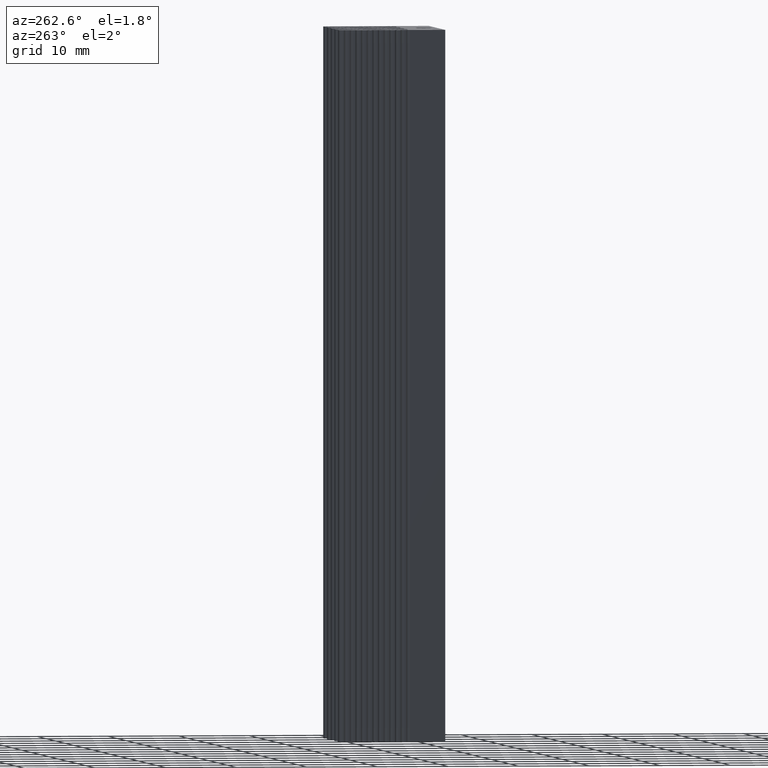
[diagram: clean part render]
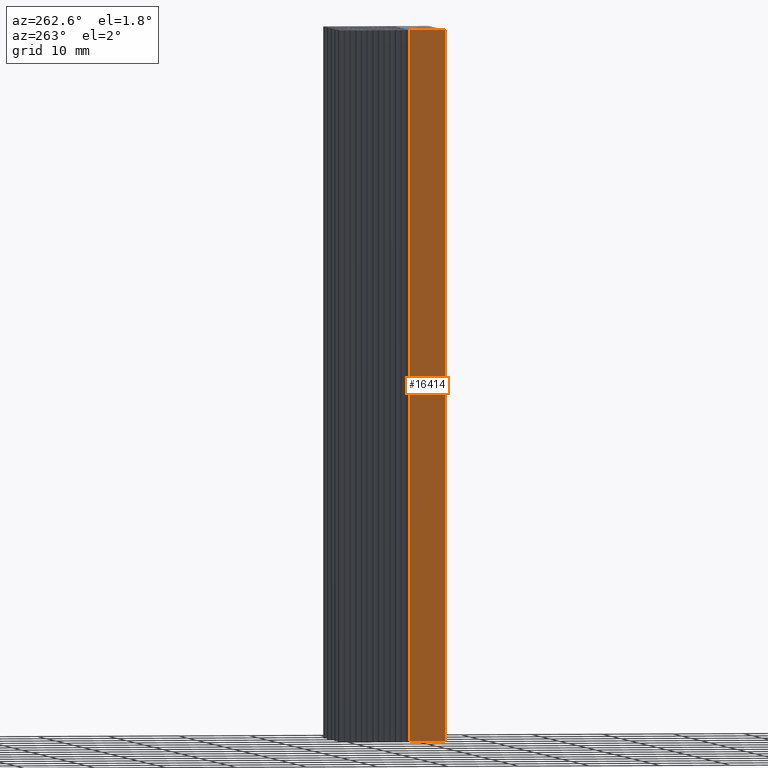
[diagram: same view with one face highlighted and labeled with its STEP entity id]
A machine part, auxiliary view. The second image highlights one B-rep face of the part: STEP entity #16414.
In plain terms, the highlighted planar face has unit normal (1, 0, -0).
Its self-contained STEP definition (entity closure, byte-faithful):
#113 = DIRECTION ( 'NONE',  ( -0.0000000000000000000, -0.0000000000000000000, -1.000000000000000000 ) ) ;
#558 = CARTESIAN_POINT ( 'NONE',  ( -9.000000000000119016, -7.500000000000007105, 50.00000000000000000 ) ) ;
#613 = LINE ( 'NONE', #5924, #8751 ) ;
#1893 = VECTOR ( 'NONE', #3853, 1000.000000000000000 ) ;
#2194 = EDGE_CURVE ( 'NONE', #19798, #4421, #14247, .T. ) ;
#2878 = VERTEX_POINT ( 'NONE', #9208 ) ;
#3370 = PLANE ( 'NONE',  #16448 ) ;
#3515 = CARTESIAN_POINT ( 'NONE',  ( -9.000000000000119016, -7.500000000000007105, -50.00000000000000000 ) ) ;
#3607 = CARTESIAN_POINT ( 'NONE',  ( -9.000000000000119016, 0.0000000000000000000, -50.00000000000000000 ) ) ;
#3853 = DIRECTION ( 'NONE',  ( -0.0000000000000000000, -0.0000000000000000000, -1.000000000000000000 ) ) ;
#4127 = ORIENTED_EDGE ( 'NONE', *, *, #11248, .T. ) ;
#4421 = VERTEX_POINT ( 'NONE', #3515 ) ;
#5433 = VERTEX_POINT ( 'NONE', #15724 ) ;
#5795 = ORIENTED_EDGE ( 'NONE', *, *, #2194, .F. ) ;
#5924 = CARTESIAN_POINT ( 'NONE',  ( -9.000000000000119016, 0.0000000000000000000, 50.00000000000000000 ) ) ;
#6347 = EDGE_CURVE ( 'NONE', #2878, #19798, #613, .T. ) ;
#7360 = EDGE_LOOP ( 'NONE', ( #4127, #5795, #8899, #9829 ) ) ;
#7479 = DIRECTION ( 'NONE',  ( 0.0000000000000000000, -1.000000000000000000, 0.0000000000000000000 ) ) ;
#8007 = DIRECTION ( 'NONE',  ( -0.0000000000000000000, 0.0000000000000000000, -1.000000000000000000 ) ) ;
#8751 = VECTOR ( 'NONE', #7479, 1000.000000000000000 ) ;
#8899 = ORIENTED_EDGE ( 'NONE', *, *, #6347, .F. ) ;
#9208 = CARTESIAN_POINT ( 'NONE',  ( -9.000000000000119016, -2.487228132323021867, 50.00000000000000000 ) ) ;
#9829 = ORIENTED_EDGE ( 'NONE', *, *, #15510, .T. ) ;
#9959 = FACE_OUTER_BOUND ( 'NONE', #7360, .T. ) ;
#10005 = LINE ( 'NONE', #17679, #1893 ) ;
#10163 = VECTOR ( 'NONE', #113, 1000.000000000000000 ) ;
#11248 = EDGE_CURVE ( 'NONE', #5433, #4421, #18197, .T. ) ;
#13343 = CARTESIAN_POINT ( 'NONE',  ( -9.000000000000119016, -7.500000000000007105, 50.00000000000000000 ) ) ;
#14247 = LINE ( 'NONE', #13343, #10163 ) ;
#15510 = EDGE_CURVE ( 'NONE', #2878, #5433, #10005, .T. ) ;
#15724 = CARTESIAN_POINT ( 'NONE',  ( -9.000000000000119016, -2.487228132323021867, -50.00000000000000000 ) ) ;
#16414 = ADVANCED_FACE ( 'NONE', ( #9959 ), #3370, .F. ) ;
#16448 = AXIS2_PLACEMENT_3D ( 'NONE', #16976, #17174, #8007 ) ;
#16976 = CARTESIAN_POINT ( 'NONE',  ( -9.000000000000119016, 0.0000000000000000000, 50.00000000000000000 ) ) ;
#17174 = DIRECTION ( 'NONE',  ( 1.000000000000000000, 0.0000000000000000000, -0.0000000000000000000 ) ) ;
#17679 = CARTESIAN_POINT ( 'NONE',  ( -9.000000000000119016, -2.487228132323021867, 50.00000000000000000 ) ) ;
#17699 = VECTOR ( 'NONE', #18908, 1000.000000000000000 ) ;
#18197 = LINE ( 'NONE', #3607, #17699 ) ;
#18908 = DIRECTION ( 'NONE',  ( 0.0000000000000000000, -1.000000000000000000, 0.0000000000000000000 ) ) ;
#19798 = VERTEX_POINT ( 'NONE', #558 ) ;